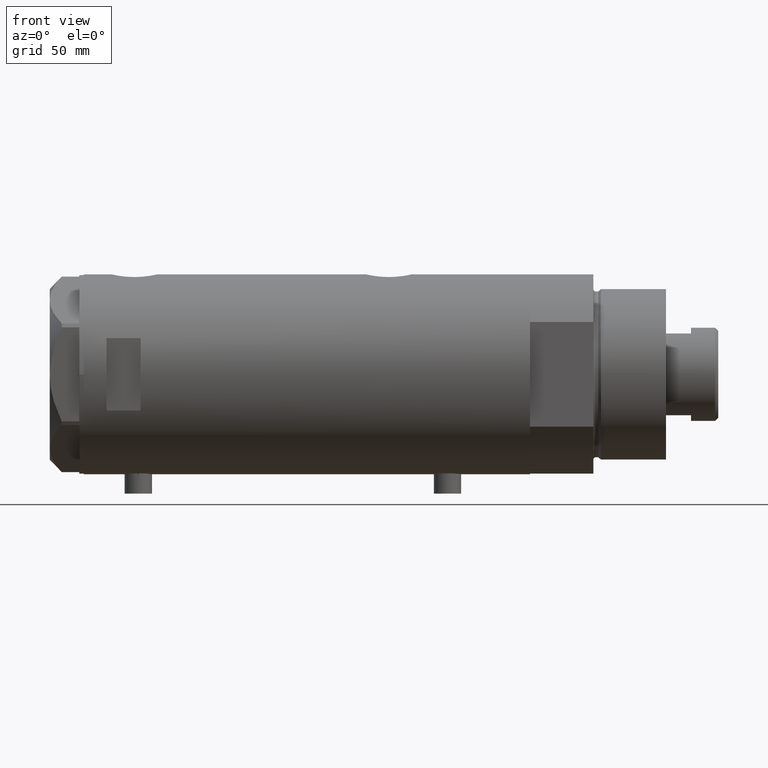
[diagram: clean part render]
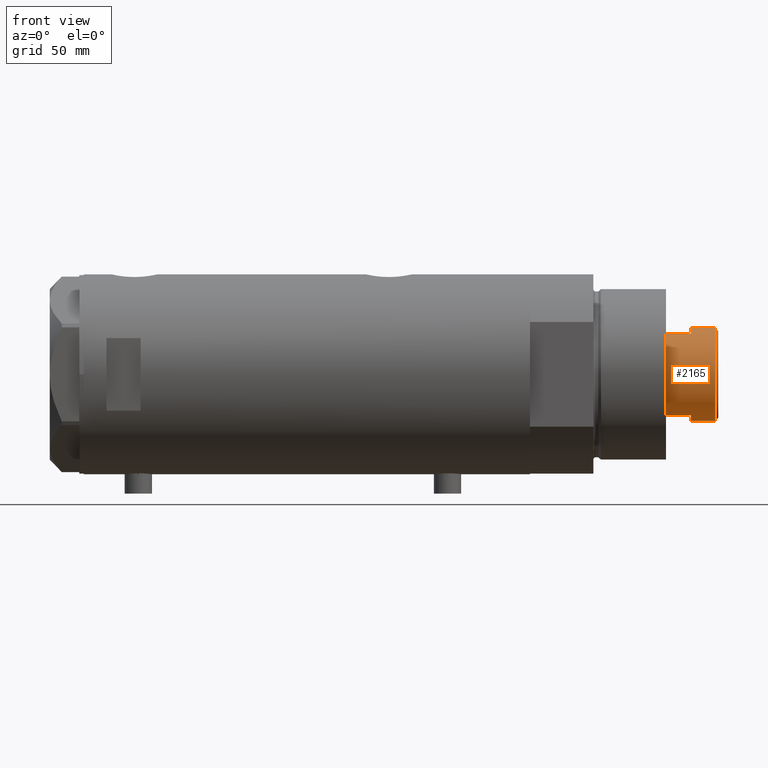
[diagram: same view with one face highlighted and labeled with its STEP entity id]
A machine part, front view. The second image highlights one B-rep face of the part: STEP entity #2165.
In plain terms, the highlighted cylindrical surface (partial cylindrical patch) has radius 20.5 mm, axis along (-1, -0, 0).
Its self-contained STEP definition (entity closure, byte-faithful):
#22 = CARTESIAN_POINT ( 'NONE',  ( -17.97852886083842350, -9.850000000000001421, 241.3000000000000114 ) ) ;
#37 = CIRCLE ( 'NONE', #1726, 20.50000000000000000 ) ;
#46 = LINE ( 'NONE', #2860, #1071 ) ;
#106 = EDGE_CURVE ( 'NONE', #2418, #3877, #37, .T. ) ;
#118 = AXIS2_PLACEMENT_3D ( 'NONE', #253, #3053, #4457 ) ;
#128 = ORIENTED_EDGE ( 'NONE', *, *, #4303, .T. ) ;
#145 = VERTEX_POINT ( 'NONE', #3729 ) ;
#158 = DIRECTION ( 'NONE',  ( 0.000000000000000000, 0.000000000000000000, 1.000000000000000000 ) ) ;
#253 = CARTESIAN_POINT ( 'NONE',  ( 0.000000000000000000, 0.000000000000000000, 230.3000000000000114 ) ) ;
#278 = CARTESIAN_POINT ( 'NONE',  ( 17.97852886083843060, -9.849999999999994316, 241.3000000000000114 ) ) ;
#394 = EDGE_CURVE ( 'NONE', #4261, #4250, #1828, .T. ) ;
#427 = CIRCLE ( 'NONE', #4453, 20.50000000000000355 ) ;
#461 = EDGE_LOOP ( 'NONE', ( #3964, #128, #2412, #3145, #3954, #3968, #2931, #719 ) ) ;
#500 = DIRECTION ( 'NONE',  ( 0.000000000000000000, 0.000000000000000000, 1.000000000000000000 ) ) ;
#618 = LINE ( 'NONE', #278, #1282 ) ;
#719 = ORIENTED_EDGE ( 'NONE', *, *, #106, .T. ) ;
#777 = CIRCLE ( 'NONE', #1351, 20.50000000000000000 ) ;
#822 = EDGE_CURVE ( 'NONE', #3763, #4261, #777, .T. ) ;
#908 = EDGE_CURVE ( 'NONE', #145, #3877, #2948, .T. ) ;
#1071 = VECTOR ( 'NONE', #3649, 1000.000000000000000 ) ;
#1086 = DIRECTION ( 'NONE',  ( -0.000000000000000000, -0.000000000000000000, -1.000000000000000000 ) ) ;
#1182 = EDGE_CURVE ( 'NONE', #2418, #4141, #618, .T. ) ;
#1282 = VECTOR ( 'NONE', #4490, 1000.000000000000000 ) ;
#1296 = CARTESIAN_POINT ( 'NONE',  ( -20.50000000000000355, 0.000000000000000000, 251.9000000000001194 ) ) ;
#1324 = CARTESIAN_POINT ( 'NONE',  ( 17.97852886083843060, -9.849999999999960565, 230.3000000000000114 ) ) ;
#1351 = AXIS2_PLACEMENT_3D ( 'NONE', #2976, #500, #4004 ) ;
#1496 = CARTESIAN_POINT ( 'NONE',  ( 20.50000000000000000, 2.510525938252074481E-15, 241.3000000000000114 ) ) ;
#1700 = CARTESIAN_POINT ( 'NONE',  ( 17.97852886083843060, -9.849999999999994316, 241.3000000000000114 ) ) ;
#1709 = CARTESIAN_POINT ( 'NONE',  ( 0.000000000000000000, 0.000000000000000000, 251.9000000000001194 ) ) ;
#1726 = AXIS2_PLACEMENT_3D ( 'NONE', #3325, #158, #3369 ) ;
#1828 = LINE ( 'NONE', #22, #2745 ) ;
#1966 = CARTESIAN_POINT ( 'NONE',  ( -17.97852886083842705, -9.849999999999972999, 230.3000000000000114 ) ) ;
#2005 = CARTESIAN_POINT ( 'NONE',  ( -17.97852886083842705, -9.849999999999996092, 241.3000000000000114 ) ) ;
#2165 = ADVANCED_FACE ( 'NONE', ( #3940 ), #2269, .T. ) ;
#2245 = CARTESIAN_POINT ( 'NONE',  ( 0.000000000000000000, 0.000000000000000000, 241.3000000000000114 ) ) ;
#2248 = AXIS2_PLACEMENT_3D ( 'NONE', #2245, #3572, #2568 ) ;
#2269 = CYLINDRICAL_SURFACE ( 'NONE', #2248, 20.50000000000000355 ) ;
#2302 = EDGE_CURVE ( 'NONE', #4250, #4141, #4437, .T. ) ;
#2412 = ORIENTED_EDGE ( 'NONE', *, *, #2525, .T. ) ;
#2418 = VERTEX_POINT ( 'NONE', #1700 ) ;
#2525 = EDGE_CURVE ( 'NONE', #3073, #3763, #46, .T. ) ;
#2568 = DIRECTION ( 'NONE',  ( -1.000000000000000000, 0.000000000000000000, 0.000000000000000000 ) ) ;
#2600 = CARTESIAN_POINT ( 'NONE',  ( 20.50000000000000355, 2.510525938252074481E-15, 241.3000000000000114 ) ) ;
#2745 = VECTOR ( 'NONE', #1086, 1000.000000000000000 ) ;
#2860 = CARTESIAN_POINT ( 'NONE',  ( -20.50000000000000355, 0.000000000000000000, 241.3000000000000114 ) ) ;
#2931 = ORIENTED_EDGE ( 'NONE', *, *, #1182, .F. ) ;
#2948 = LINE ( 'NONE', #2600, #3266 ) ;
#2976 = CARTESIAN_POINT ( 'NONE',  ( 0.000000000000000000, 0.000000000000000000, 241.3000000000000114 ) ) ;
#3053 = DIRECTION ( 'NONE',  ( 0.000000000000000000, 0.000000000000000000, 1.000000000000000000 ) ) ;
#3073 = VERTEX_POINT ( 'NONE', #1296 ) ;
#3079 = DIRECTION ( 'NONE',  ( 0.000000000000000000, 0.000000000000000000, -1.000000000000000000 ) ) ;
#3145 = ORIENTED_EDGE ( 'NONE', *, *, #822, .T. ) ;
#3208 = CARTESIAN_POINT ( 'NONE',  ( -20.50000000000000000, 0.000000000000000000, 241.3000000000000114 ) ) ;
#3266 = VECTOR ( 'NONE', #3651, 1000.000000000000000 ) ;
#3325 = CARTESIAN_POINT ( 'NONE',  ( 0.000000000000000000, 0.000000000000000000, 241.3000000000000114 ) ) ;
#3369 = DIRECTION ( 'NONE',  ( 1.000000000000000000, 0.000000000000000000, 0.000000000000000000 ) ) ;
#3572 = DIRECTION ( 'NONE',  ( -0.000000000000000000, -0.000000000000000000, -1.000000000000000000 ) ) ;
#3649 = DIRECTION ( 'NONE',  ( -0.000000000000000000, -0.000000000000000000, -1.000000000000000000 ) ) ;
#3651 = DIRECTION ( 'NONE',  ( -0.000000000000000000, -0.000000000000000000, -1.000000000000000000 ) ) ;
#3729 = CARTESIAN_POINT ( 'NONE',  ( 20.50000000000000355, 2.510525938252074481E-15, 251.9000000000001194 ) ) ;
#3760 = DIRECTION ( 'NONE',  ( 1.000000000000000000, 0.000000000000000000, 0.000000000000000000 ) ) ;
#3763 = VERTEX_POINT ( 'NONE', #3208 ) ;
#3877 = VERTEX_POINT ( 'NONE', #1496 ) ;
#3940 = FACE_OUTER_BOUND ( 'NONE', #461, .T. ) ;
#3954 = ORIENTED_EDGE ( 'NONE', *, *, #394, .T. ) ;
#3964 = ORIENTED_EDGE ( 'NONE', *, *, #908, .F. ) ;
#3968 = ORIENTED_EDGE ( 'NONE', *, *, #2302, .T. ) ;
#4004 = DIRECTION ( 'NONE',  ( 1.000000000000000000, 0.000000000000000000, 0.000000000000000000 ) ) ;
#4141 = VERTEX_POINT ( 'NONE', #1324 ) ;
#4250 = VERTEX_POINT ( 'NONE', #1966 ) ;
#4261 = VERTEX_POINT ( 'NONE', #2005 ) ;
#4303 = EDGE_CURVE ( 'NONE', #145, #3073, #427, .T. ) ;
#4437 = CIRCLE ( 'NONE', #118, 20.50000000000000355 ) ;
#4453 = AXIS2_PLACEMENT_3D ( 'NONE', #1709, #3079, #3760 ) ;
#4457 = DIRECTION ( 'NONE',  ( 1.000000000000000000, 0.000000000000000000, 0.000000000000000000 ) ) ;
#4490 = DIRECTION ( 'NONE',  ( -0.000000000000000000, -0.000000000000000000, -1.000000000000000000 ) ) ;